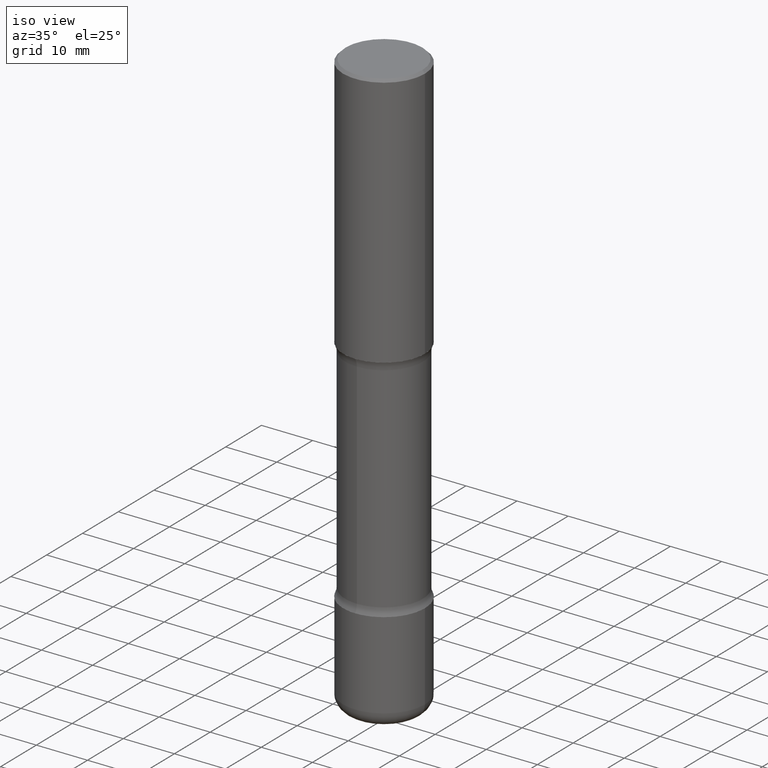
[diagram: clean part render]
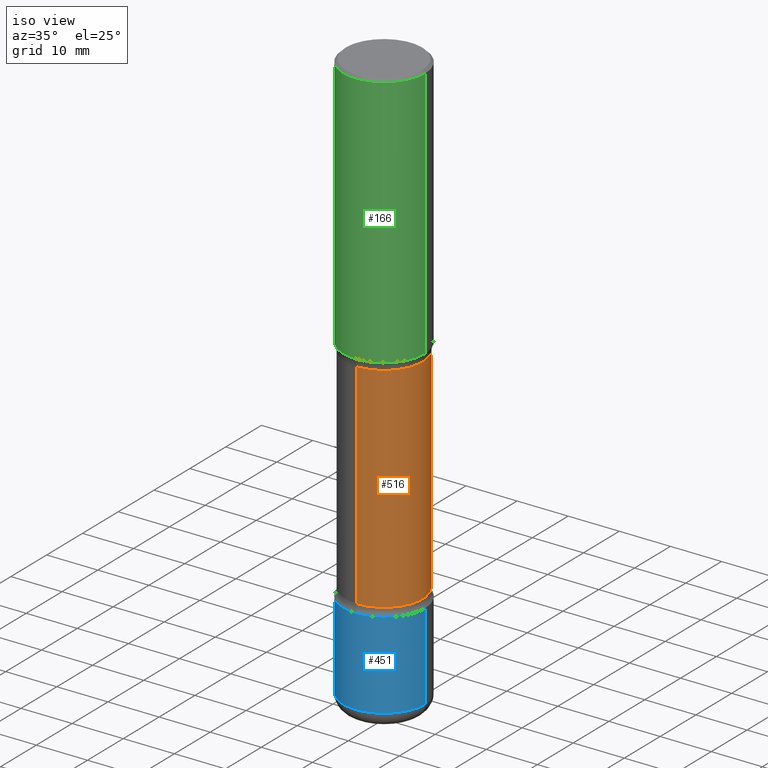
[diagram: same view with three faces highlighted in distinct colors, each labeled with its STEP entity id]
A machine part, iso view with three faces highlighted in distinct colors.
Their STEP definitions:

[orange] entity #516 — the highlighted cylindrical surface (partial cylindrical patch) has radius 7.5946 mm, axis along (0, -0, -1).
#45 = CARTESIAN_POINT ( 'NONE',  ( 2.087905840628304834E-15, 0.2989999999999842784, -4.527600000000000513 ) ) ;
#58 = ORIENTED_EDGE ( 'NONE', *, *, #430, .F. ) ;
#85 = CARTESIAN_POINT ( 'NONE',  ( -2.051288901333576903E-15, -0.2990000000000157532, -4.527599999999998737 ) ) ;
#94 = ORIENTED_EDGE ( 'NONE', *, *, #130, .T. ) ;
#95 = CARTESIAN_POINT ( 'NONE',  ( 2.087905840628283535E-15, 0.2989999999999871094, -3.679100920628867399 ) ) ;
#130 = EDGE_CURVE ( 'NONE', #394, #541, #233, .T. ) ;
#140 = DIRECTION ( 'NONE',  ( 2.507091165645431514E-29, -3.403234612769116586E-15, -1.000000000000000000 ) ) ;
#152 = AXIS2_PLACEMENT_3D ( 'NONE', #464, #511, #334 ) ;
#207 = ORIENTED_EDGE ( 'NONE', *, *, #269, .F. ) ;
#233 = CIRCLE ( 'NONE', #152, 0.2989999999999999880 ) ;
#243 = VERTEX_POINT ( 'NONE', #404 ) ;
#251 = VERTEX_POINT ( 'NONE', #95 ) ;
#266 = DIRECTION ( 'NONE',  ( 2.507091165645431514E-29, -3.403234612769116586E-15, -1.000000000000000000 ) ) ;
#269 = EDGE_CURVE ( 'NONE', #394, #251, #336, .T. ) ;
#293 = FACE_OUTER_BOUND ( 'NONE', #399, .T. ) ;
#311 = AXIS2_PLACEMENT_3D ( 'NONE', #469, #513, #474 ) ;
#334 = DIRECTION ( 'NONE',  ( 6.982962677686266711E-15, 1.000000000000000000, -3.654646145370252101E-15 ) ) ;
#336 = LINE ( 'NONE', #45, #390 ) ;
#343 = CARTESIAN_POINT ( 'NONE',  ( -2.106001372865868613E-15, -0.2990000000000072600, -2.029599079371131598 ) ) ;
#347 = CARTESIAN_POINT ( 'NONE',  ( 1.112062601272285917E-28, -1.573854543763553237E-14, -4.527599999999999625 ) ) ;
#368 = VECTOR ( 'NONE', #140, 39.37007874015748143 ) ;
#385 = DIRECTION ( 'NONE',  ( 6.982962677686266711E-15, 1.000000000000000000, -3.654646145370252101E-15 ) ) ;
#390 = VECTOR ( 'NONE', #266, 39.37007874015748143 ) ;
#394 = VERTEX_POINT ( 'NONE', #501 ) ;
#399 = EDGE_LOOP ( 'NONE', ( #94, #537, #58, #207 ) ) ;
#404 = CARTESIAN_POINT ( 'NONE',  ( -2.106001372865825226E-15, -0.2990000000000128111, -3.679100920628865179 ) ) ;
#411 = AXIS2_PLACEMENT_3D ( 'NONE', #347, #519, #385 ) ;
#430 = EDGE_CURVE ( 'NONE', #251, #243, #482, .T. ) ;
#464 = CARTESIAN_POINT ( 'NONE',  ( 4.857909972840073546E-29, -7.237262241822257624E-15, -2.029599079371132930 ) ) ;
#469 = CARTESIAN_POINT ( 'NONE',  ( 8.993361466773209544E-29, -1.285090400181696271E-14, -3.679100920628866511 ) ) ;
#474 = DIRECTION ( 'NONE',  ( 6.982962677686265133E-15, 1.000000000000000000, -3.654646145370252101E-15 ) ) ;
#479 = CYLINDRICAL_SURFACE ( 'NONE', #411, 0.2989999999999999880 ) ;
#482 = CIRCLE ( 'NONE', #311, 0.2989999999999999880 ) ;
#501 = CARTESIAN_POINT ( 'NONE',  ( 2.087905840628242119E-15, 0.2989999999999927716, -2.029599079371133818 ) ) ;
#511 = DIRECTION ( 'NONE',  ( 2.507091165645431514E-29, -3.403234612769116586E-15, -1.000000000000000000 ) ) ;
#513 = DIRECTION ( 'NONE',  ( 2.507091165645431514E-29, -3.403234612769116586E-15, -1.000000000000000000 ) ) ;
#516 = ADVANCED_FACE ( 'NONE', ( #293 ), #479, .T. ) ;
#519 = DIRECTION ( 'NONE',  ( 2.507091165645431514E-29, -3.403234612769116586E-15, -1.000000000000000000 ) ) ;
#522 = EDGE_CURVE ( 'NONE', #541, #243, #528, .T. ) ;
#528 = LINE ( 'NONE', #85, #368 ) ;
#537 = ORIENTED_EDGE ( 'NONE', *, *, #522, .T. ) ;
#541 = VERTEX_POINT ( 'NONE', #343 ) ;

[blue] entity #451 — the highlighted cylindrical surface (partial cylindrical patch) has radius 7.9997 mm, axis along (-0, 0, 1).
#5 = LINE ( 'NONE', #83, #294 ) ;
#6 = FACE_OUTER_BOUND ( 'NONE', #353, .T. ) ;
#17 = ORIENTED_EDGE ( 'NONE', *, *, #56, .T. ) ;
#29 = DIRECTION ( 'NONE',  ( 1.000000000000000000, -6.982962677686263555E-15, 0.000000000000000000 ) ) ;
#37 = AXIS2_PLACEMENT_3D ( 'NONE', #114, #454, #279 ) ;
#41 = VERTEX_POINT ( 'NONE', #116 ) ;
#43 = CARTESIAN_POINT ( 'NONE',  ( 0.3149500000000002298, -1.525812259887842266E-14, -3.740199999999999747 ) ) ;
#56 = EDGE_CURVE ( 'NONE', #280, #41, #75, .T. ) ;
#75 = CIRCLE ( 'NONE', #366, 0.3149500000000002853 ) ;
#83 = CARTESIAN_POINT ( 'NONE',  ( -0.3149500000000002853, 2.237854346276437562E-15, -1.549218606675783797E-29 ) ) ;
#114 = CARTESIAN_POINT ( 'NONE',  ( 0.000000000000000000, 0.000000000000000000, 0.000000000000000000 ) ) ;
#116 = CARTESIAN_POINT ( 'NONE',  ( 0.3149500000000002853, -1.759497105896613963E-14, -4.409499999999999531 ) ) ;
#145 = ORIENTED_EDGE ( 'NONE', *, *, #348, .F. ) ;
#148 = CYLINDRICAL_SURFACE ( 'NONE', #37, 0.3149500000000002853 ) ;
#159 = DIRECTION ( 'NONE',  ( -2.445468806185136597E-29, 3.491481338843145583E-15, 1.000000000000000000 ) ) ;
#176 = CARTESIAN_POINT ( 'NONE',  ( -0.3149500000000002298, -1.198940838730855371E-14, -3.740199999999999747 ) ) ;
#231 = VERTEX_POINT ( 'NONE', #43 ) ;
#232 = DIRECTION ( 'NONE',  ( 1.000000000000000000, -6.982962677686264344E-15, 0.000000000000000000 ) ) ;
#273 = CARTESIAN_POINT ( 'NONE',  ( 9.146542428893647141E-29, -1.305883850354113279E-14, -3.740199999999999747 ) ) ;
#279 = DIRECTION ( 'NONE',  ( 1.000000000000000000, -6.982962677686267499E-15, 4.876176775795936353E-29 ) ) ;
#280 = VERTEX_POINT ( 'NONE', #351 ) ;
#290 = EDGE_CURVE ( 'NONE', #280, #503, #5, .T. ) ;
#294 = VECTOR ( 'NONE', #517, 39.37007874015748143 ) ;
#315 = DIRECTION ( 'NONE',  ( -2.445468806185136877E-29, 3.491481338843145188E-15, 1.000000000000000000 ) ) ;
#319 = CIRCLE ( 'NONE', #339, 0.3149500000000002298 ) ;
#339 = AXIS2_PLACEMENT_3D ( 'NONE', #273, #431, #232 ) ;
#348 = EDGE_CURVE ( 'NONE', #503, #231, #319, .T. ) ;
#351 = CARTESIAN_POINT ( 'NONE',  ( -0.3149500000000002853, -1.315783261735241220E-14, -4.409499999999999531 ) ) ;
#353 = EDGE_LOOP ( 'NONE', ( #360, #17, #460, #145 ) ) ;
#355 = CARTESIAN_POINT ( 'NONE',  ( 0.3149500000000002853, -2.199284095337291843E-15, 1.535751875536931531E-29 ) ) ;
#360 = ORIENTED_EDGE ( 'NONE', *, *, #290, .F. ) ;
#361 = LINE ( 'NONE', #355, #428 ) ;
#366 = AXIS2_PLACEMENT_3D ( 'NONE', #429, #159, #29 ) ;
#428 = VECTOR ( 'NONE', #315, 39.37007874015748143 ) ;
#429 = CARTESIAN_POINT ( 'NONE',  ( 1.078329470087335798E-28, -1.539568696362884818E-14, -4.409499999999999531 ) ) ;
#431 = DIRECTION ( 'NONE',  ( -2.445468806185136597E-29, 3.491481338843145583E-15, 1.000000000000000000 ) ) ;
#451 = ADVANCED_FACE ( 'NONE', ( #6 ), #148, .T. ) ;
#454 = DIRECTION ( 'NONE',  ( -2.445468806185136597E-29, 3.491481338843145583E-15, 1.000000000000000000 ) ) ;
#460 = ORIENTED_EDGE ( 'NONE', *, *, #557, .T. ) ;
#503 = VERTEX_POINT ( 'NONE', #176 ) ;
#517 = DIRECTION ( 'NONE',  ( -2.445468806185136877E-29, 3.491481338843145188E-15, 1.000000000000000000 ) ) ;
#557 = EDGE_CURVE ( 'NONE', #41, #231, #361, .T. ) ;

[green] entity #166 — the highlighted cylindrical surface (partial cylindrical patch) has radius 7.9997 mm, axis along (-0, 0, 1).
#9 = CARTESIAN_POINT ( 'NONE',  ( -0.3149500000000000077, 2.237854346276435590E-15, -1.549218606675782676E-29 ) ) ;
#16 = VERTEX_POINT ( 'NONE', #106 ) ;
#22 = VERTEX_POINT ( 'NONE', #364 ) ;
#34 = CARTESIAN_POINT ( 'NONE',  ( -0.3149500000000001743, -1.233550974868357771E-15, -1.968499999999999472 ) ) ;
#35 = VERTEX_POINT ( 'NONE', #374 ) ;
#97 = ORIENTED_EDGE ( 'NONE', *, *, #107, .F. ) ;
#104 = VERTEX_POINT ( 'NONE', #34 ) ;
#106 = CARTESIAN_POINT ( 'NONE',  ( -0.3149499999999998967, 2.129454468560425784E-15, -0.02000000000000006981 ) ) ;
#107 = EDGE_CURVE ( 'NONE', #16, #22, #278, .T. ) ;
#115 = ORIENTED_EDGE ( 'NONE', *, *, #461, .T. ) ;
#135 = DIRECTION ( 'NONE',  ( -2.445468806185136597E-29, 3.491481338843145583E-15, 1.000000000000000000 ) ) ;
#154 = EDGE_LOOP ( 'NONE', ( #499, #115, #512, #97 ) ) ;
#157 = FACE_OUTER_BOUND ( 'NONE', #154, .T. ) ;
#166 = ADVANCED_FACE ( 'NONE', ( #157 ), #467, .T. ) ;
#218 = CARTESIAN_POINT ( 'NONE',  ( 0.3149500000000000077, -2.199284095337289871E-15, 1.535751875536930130E-29 ) ) ;
#235 = VECTOR ( 'NONE', #356, 39.37007874015748143 ) ;
#270 = LINE ( 'NONE', #9, #235 ) ;
#278 = CIRCLE ( 'NONE', #515, 0.3149499999999998967 ) ;
#286 = DIRECTION ( 'NONE',  ( 1.000000000000000000, -6.982962677686266711E-15, 4.876176775795936353E-29 ) ) ;
#292 = DIRECTION ( 'NONE',  ( 1.000000000000000000, -6.982962677686265922E-15, 0.000000000000000000 ) ) ;
#310 = EDGE_CURVE ( 'NONE', #35, #22, #480, .T. ) ;
#325 = DIRECTION ( 'NONE',  ( -2.445468806185136597E-29, 3.491481338843145583E-15, 1.000000000000000000 ) ) ;
#330 = AXIS2_PLACEMENT_3D ( 'NONE', #415, #135, #446 ) ;
#331 = CARTESIAN_POINT ( 'NONE',  ( 0.000000000000000000, 0.000000000000000000, 0.000000000000000000 ) ) ;
#356 = DIRECTION ( 'NONE',  ( -2.445468806185136877E-29, 3.491481338843145188E-15, 1.000000000000000000 ) ) ;
#364 = CARTESIAN_POINT ( 'NONE',  ( 0.3149499999999998967, -2.230543471175006266E-15, -0.02000000000000006981 ) ) ;
#374 = CARTESIAN_POINT ( 'NONE',  ( 0.3149500000000001743, -9.072265110850020000E-15, -1.968499999999999472 ) ) ;
#382 = DIRECTION ( 'NONE',  ( -2.445468806185136597E-29, 3.491481338843145583E-15, 1.000000000000000000 ) ) ;
#395 = DIRECTION ( 'NONE',  ( -2.445468806185136877E-29, 3.491481338843145188E-15, 1.000000000000000000 ) ) ;
#415 = CARTESIAN_POINT ( 'NONE',  ( 4.813905344975440153E-29, -6.872981015512730130E-15, -1.968499999999999472 ) ) ;
#419 = CARTESIAN_POINT ( 'NONE',  ( 4.890937612370289799E-31, -6.982962677686315028E-17, -0.02000000000000006981 ) ) ;
#445 = VECTOR ( 'NONE', #395, 39.37007874015748143 ) ;
#446 = DIRECTION ( 'NONE',  ( 1.000000000000000000, -6.982962677686263555E-15, 0.000000000000000000 ) ) ;
#461 = EDGE_CURVE ( 'NONE', #104, #35, #536, .T. ) ;
#467 = CYLINDRICAL_SURFACE ( 'NONE', #471, 0.3149500000000000077 ) ;
#468 = EDGE_CURVE ( 'NONE', #104, #16, #270, .T. ) ;
#471 = AXIS2_PLACEMENT_3D ( 'NONE', #331, #325, #286 ) ;
#480 = LINE ( 'NONE', #218, #445 ) ;
#499 = ORIENTED_EDGE ( 'NONE', *, *, #468, .F. ) ;
#512 = ORIENTED_EDGE ( 'NONE', *, *, #310, .T. ) ;
#515 = AXIS2_PLACEMENT_3D ( 'NONE', #419, #382, #292 ) ;
#536 = CIRCLE ( 'NONE', #330, 0.3149500000000001743 ) ;